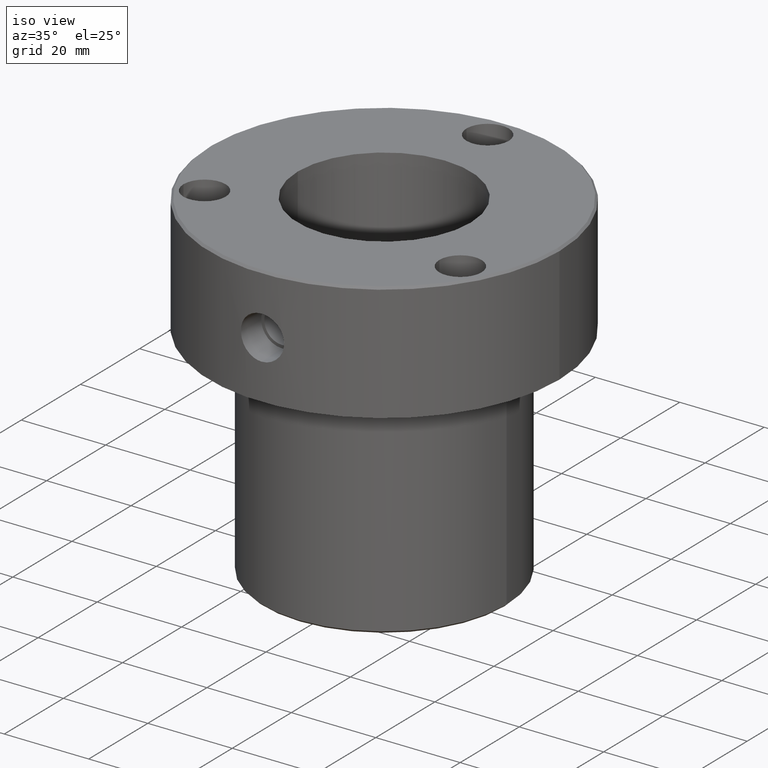
[diagram: clean part render]
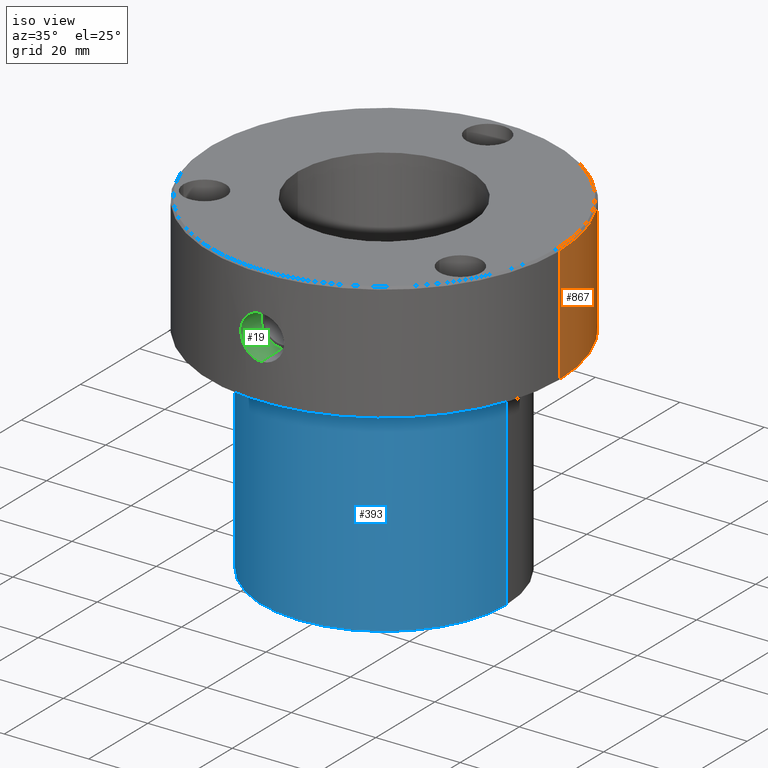
[diagram: same view with three faces highlighted in distinct colors, each labeled with its STEP entity id]
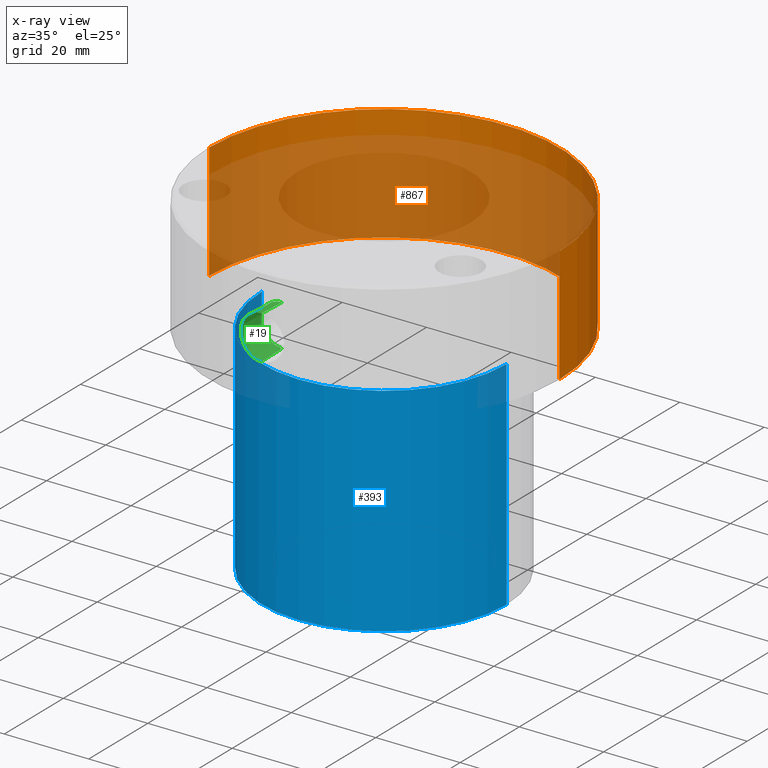
[diagram: x-ray of the same camera — body ghosted, the three highlighted faces saturated]
A machine part, iso view with three faces highlighted in distinct colors.
The next image is the same camera in x-ray (body ghosted, the three faces saturated) — at least one of them is partly hidden behind the body in this view.
Their STEP definitions:

[orange] entity #867 — the highlighted cylindrical surface (partial cylindrical patch) has radius 41.5 mm, axis along (-0, -0, 1).
#26 = DIRECTION ( 'NONE',  ( 1.000000000000000000, 0.000000000000000000, 0.000000000000000000 ) ) ;
#39 = DIRECTION ( 'NONE',  ( 0.000000000000000000, 0.000000000000000000, -1.000000000000000000 ) ) ;
#42 = LINE ( 'NONE', #743, #849 ) ;
#82 = CARTESIAN_POINT ( 'NONE',  ( 41.50000000000000000, 0.000000000000000000, -27.99999999999999645 ) ) ;
#102 = VECTOR ( 'NONE', #658, 1000.000000000000000 ) ;
#164 = EDGE_LOOP ( 'NONE', ( #798, #1090, #1058, #834 ) ) ;
#169 = CARTESIAN_POINT ( 'NONE',  ( -41.50000000000000000, 5.082284216461515748E-15, -0.5000000000000143219 ) ) ;
#325 = CYLINDRICAL_SURFACE ( 'NONE', #827, 41.50000000000000000 ) ;
#343 = DIRECTION ( 'NONE',  ( -0.000000000000000000, -0.000000000000000000, 1.000000000000000000 ) ) ;
#350 = EDGE_CURVE ( 'NONE', #420, #877, #993, .T. ) ;
#417 = CARTESIAN_POINT ( 'NONE',  ( 0.000000000000000000, 0.000000000000000000, 0.000000000000000000 ) ) ;
#420 = VERTEX_POINT ( 'NONE', #82 ) ;
#423 = DIRECTION ( 'NONE',  ( 1.000000000000000000, 0.000000000000000000, 0.000000000000000000 ) ) ;
#473 = AXIS2_PLACEMENT_3D ( 'NONE', #515, #343, #709 ) ;
#503 = EDGE_CURVE ( 'NONE', #420, #921, #805, .T. ) ;
#515 = CARTESIAN_POINT ( 'NONE',  ( 0.000000000000000000, 0.000000000000000000, -27.99999999999999645 ) ) ;
#518 = CARTESIAN_POINT ( 'NONE',  ( 0.000000000000000000, 0.000000000000000000, -0.5000000000000143219 ) ) ;
#647 = VERTEX_POINT ( 'NONE', #169 ) ;
#656 = CIRCLE ( 'NONE', #961, 41.50000000000000000 ) ;
#658 = DIRECTION ( 'NONE',  ( -0.000000000000000000, -0.000000000000000000, 1.000000000000000000 ) ) ;
#709 = DIRECTION ( 'NONE',  ( 1.000000000000000000, 0.000000000000000000, 0.000000000000000000 ) ) ;
#733 = CARTESIAN_POINT ( 'NONE',  ( 41.50000000000000000, 0.000000000000000000, 0.000000000000000000 ) ) ;
#743 = CARTESIAN_POINT ( 'NONE',  ( -41.50000000000000000, 5.082284216461515748E-15, 0.000000000000000000 ) ) ;
#779 = CARTESIAN_POINT ( 'NONE',  ( 41.50000000000000000, 0.000000000000000000, -0.5000000000000143219 ) ) ;
#784 = CARTESIAN_POINT ( 'NONE',  ( -41.50000000000000000, 5.082284216461515748E-15, -27.99999999999999645 ) ) ;
#798 = ORIENTED_EDGE ( 'NONE', *, *, #350, .T. ) ;
#805 = LINE ( 'NONE', #733, #102 ) ;
#827 = AXIS2_PLACEMENT_3D ( 'NONE', #417, #1179, #26 ) ;
#834 = ORIENTED_EDGE ( 'NONE', *, *, #503, .F. ) ;
#849 = VECTOR ( 'NONE', #1117, 1000.000000000000000 ) ;
#867 = ADVANCED_FACE ( 'NONE', ( #986 ), #325, .T. ) ;
#877 = VERTEX_POINT ( 'NONE', #784 ) ;
#899 = EDGE_CURVE ( 'NONE', #647, #921, #656, .T. ) ;
#921 = VERTEX_POINT ( 'NONE', #779 ) ;
#961 = AXIS2_PLACEMENT_3D ( 'NONE', #518, #39, #423 ) ;
#986 = FACE_OUTER_BOUND ( 'NONE', #164, .T. ) ;
#993 = CIRCLE ( 'NONE', #473, 41.50000000000000000 ) ;
#1020 = EDGE_CURVE ( 'NONE', #877, #647, #42, .T. ) ;
#1058 = ORIENTED_EDGE ( 'NONE', *, *, #899, .T. ) ;
#1090 = ORIENTED_EDGE ( 'NONE', *, *, #1020, .T. ) ;
#1117 = DIRECTION ( 'NONE',  ( -0.000000000000000000, -0.000000000000000000, 1.000000000000000000 ) ) ;
#1179 = DIRECTION ( 'NONE',  ( -0.000000000000000000, -0.000000000000000000, 1.000000000000000000 ) ) ;

[blue] entity #393 — the highlighted cylindrical surface (partial cylindrical patch) has radius 29 mm, axis along (-0, -0, 1).
#36 = DIRECTION ( 'NONE',  ( 1.000000000000000000, 0.000000000000000000, 0.000000000000000000 ) ) ;
#129 = VERTEX_POINT ( 'NONE', #736 ) ;
#143 = DIRECTION ( 'NONE',  ( -0.000000000000000000, -0.000000000000000000, 1.000000000000000000 ) ) ;
#166 = ORIENTED_EDGE ( 'NONE', *, *, #186, .T. ) ;
#167 = CARTESIAN_POINT ( 'NONE',  ( 29.00000000000000000, 0.000000000000000000, 0.000000000000000000 ) ) ;
#186 = EDGE_CURVE ( 'NONE', #662, #973, #567, .T. ) ;
#210 = LINE ( 'NONE', #596, #1156 ) ;
#320 = CIRCLE ( 'NONE', #1080, 29.00000000000000000 ) ;
#327 = CARTESIAN_POINT ( 'NONE',  ( -29.00000000000000000, 3.551475717527324030E-15, -79.50000000000002842 ) ) ;
#393 = ADVANCED_FACE ( 'NONE', ( #819 ), #1209, .T. ) ;
#431 = EDGE_CURVE ( 'NONE', #973, #1028, #1052, .T. ) ;
#437 = ORIENTED_EDGE ( 'NONE', *, *, #431, .T. ) ;
#551 = AXIS2_PLACEMENT_3D ( 'NONE', #597, #614, #903 ) ;
#567 = CIRCLE ( 'NONE', #551, 29.00000000000000000 ) ;
#596 = CARTESIAN_POINT ( 'NONE',  ( -29.00000000000000000, 3.551475717527324030E-15, 0.000000000000000000 ) ) ;
#597 = CARTESIAN_POINT ( 'NONE',  ( 0.000000000000000000, 0.000000000000000000, -79.50000000000002842 ) ) ;
#614 = DIRECTION ( 'NONE',  ( -0.000000000000000000, -0.000000000000000000, 1.000000000000000000 ) ) ;
#653 = DIRECTION ( 'NONE',  ( -0.000000000000000000, -0.000000000000000000, 1.000000000000000000 ) ) ;
#657 = ORIENTED_EDGE ( 'NONE', *, *, #1151, .F. ) ;
#662 = VERTEX_POINT ( 'NONE', #327 ) ;
#665 = CARTESIAN_POINT ( 'NONE',  ( 0.000000000000000000, 0.000000000000000000, -27.99999999999999645 ) ) ;
#703 = CARTESIAN_POINT ( 'NONE',  ( 29.00000000000000000, 0.000000000000000000, -79.50000000000002842 ) ) ;
#736 = CARTESIAN_POINT ( 'NONE',  ( -29.00000000000000000, 3.551475717527324030E-15, -27.99999999999999645 ) ) ;
#750 = VECTOR ( 'NONE', #653, 1000.000000000000000 ) ;
#755 = DIRECTION ( 'NONE',  ( 1.000000000000000000, 0.000000000000000000, 0.000000000000000000 ) ) ;
#794 = DIRECTION ( 'NONE',  ( -0.000000000000000000, -0.000000000000000000, 1.000000000000000000 ) ) ;
#819 = FACE_OUTER_BOUND ( 'NONE', #884, .T. ) ;
#884 = EDGE_LOOP ( 'NONE', ( #1036, #166, #437, #657 ) ) ;
#894 = CARTESIAN_POINT ( 'NONE',  ( 0.000000000000000000, 0.000000000000000000, 0.000000000000000000 ) ) ;
#903 = DIRECTION ( 'NONE',  ( -1.000000000000000000, 0.000000000000000000, 0.000000000000000000 ) ) ;
#973 = VERTEX_POINT ( 'NONE', #703 ) ;
#1016 = CARTESIAN_POINT ( 'NONE',  ( 29.00000000000000000, 0.000000000000000000, -27.99999999999999645 ) ) ;
#1028 = VERTEX_POINT ( 'NONE', #1016 ) ;
#1036 = ORIENTED_EDGE ( 'NONE', *, *, #1207, .F. ) ;
#1052 = LINE ( 'NONE', #167, #750 ) ;
#1080 = AXIS2_PLACEMENT_3D ( 'NONE', #665, #1134, #755 ) ;
#1134 = DIRECTION ( 'NONE',  ( -0.000000000000000000, -0.000000000000000000, 1.000000000000000000 ) ) ;
#1135 = AXIS2_PLACEMENT_3D ( 'NONE', #894, #143, #36 ) ;
#1151 = EDGE_CURVE ( 'NONE', #129, #1028, #320, .T. ) ;
#1156 = VECTOR ( 'NONE', #794, 1000.000000000000000 ) ;
#1207 = EDGE_CURVE ( 'NONE', #662, #129, #210, .T. ) ;
#1209 = CYLINDRICAL_SURFACE ( 'NONE', #1135, 29.00000000000000000 ) ;

[green] entity #19 — the highlighted conical surface has half-angle 1.715 deg.
#15 = CARTESIAN_POINT ( 'NONE',  ( -4.617200543455427741, -41.24255031704900887, -16.52343980841959947 ) ) ;
#19 = ADVANCED_FACE ( 'NONE', ( #848 ), #713, .F. ) ;
#108 = VERTEX_POINT ( 'NONE', #1012 ) ;
#175 = ORIENTED_EDGE ( 'NONE', *, *, #786, .F. ) ;
#213 = VECTOR ( 'NONE', #1060, 1000.000000000000227 ) ;
#227 = CARTESIAN_POINT ( 'NONE',  ( -0.3350682603603476473, -41.50000000000000000, -19.39337300000000397 ) ) ;
#286 = CARTESIAN_POINT ( 'NONE',  ( -4.082477898350872714, -41.29913159889288465, -11.11345080764193227 ) ) ;
#293 = CARTESIAN_POINT ( 'NONE',  ( 6.298815287416284232E-16, -41.50000000000000000, -9.106627000000006689 ) ) ;
#295 = LINE ( 'NONE', #496, #213 ) ;
#297 = VERTEX_POINT ( 'NONE', #424 ) ;
#310 = CARTESIAN_POINT ( 'NONE',  ( -5.092463226589477365, -41.18637027485478797, -13.57687092004547402 ) ) ;
#321 = CARTESIAN_POINT ( 'NONE',  ( -4.871555449415037486, -41.21328197726079168, -12.59267309540596180 ) ) ;
#328 = CARTESIAN_POINT ( 'NONE',  ( -5.125564061013234252, -41.18226403669493152, -13.91293155588416219 ) ) ;
#381 = CARTESIAN_POINT ( 'NONE',  ( 0.000000000000000000, -34.58000000000000540, -19.18617893293992793 ) ) ;
#397 = EDGE_LOOP ( 'NONE', ( #175, #1252, #832, #499 ) ) ;
#403 = CARTESIAN_POINT ( 'NONE',  ( -2.275777960866582905, -41.43871743576949740, -18.87267168938217665 ) ) ;
#408 = CARTESIAN_POINT ( 'NONE',  ( -4.968702008353958810, -41.20153389003530719, -12.91289993887919962 ) ) ;
#416 = CARTESIAN_POINT ( 'NONE',  ( -4.083468521059986145, -41.29903949033938915, -17.38554455033941792 ) ) ;
#424 = CARTESIAN_POINT ( 'NONE',  ( 2.108101396014697804E-21, -41.50000000000000000, -19.39337300000000397 ) ) ;
#496 = CARTESIAN_POINT ( 'NONE',  ( 0.000000000000000000, -41.50000000000000000, -19.39337300000000397 ) ) ;
#499 = ORIENTED_EDGE ( 'NONE', *, *, #811, .F. ) ;
#506 = CARTESIAN_POINT ( 'NONE',  ( -1.655288949730983727, -41.46813820925184757, -19.13030085942898495 ) ) ;
#558 = CARTESIAN_POINT ( 'NONE',  ( -3.394086074553285037, -41.36166610175697400, -10.37626308858978241 ) ) ;
#573 = CIRCLE ( 'NONE', #734, 4.936178932939922603 ) ;
#576 = CARTESIAN_POINT ( 'NONE',  ( -1.334466502813387301, -41.47984381437148471, -9.272069786490492405 ) ) ;
#584 = CARTESIAN_POINT ( 'NONE',  ( -4.615070424327308629, -41.24279074956536562, -11.97206579864487708 ) ) ;
#590 = CARTESIAN_POINT ( 'NONE',  ( -3.132951887491444598, -41.38251185378926778, -18.33837002926375703 ) ) ;
#600 = LINE ( 'NONE', #796, #1243 ) ;
#604 = CARTESIAN_POINT ( 'NONE',  ( 2.108101396014697804E-21, -41.50000000000000000, -19.39337300000000397 ) ) ;
#687 = DIRECTION ( 'NONE',  ( -0.000000000000000000, -1.000000000000000000, -0.000000000000000000 ) ) ;
#690 = CARTESIAN_POINT ( 'NONE',  ( -3.868908882022317641, -41.31995826587137088, -17.64772823622658393 ) ) ;
#706 = CARTESIAN_POINT ( 'NONE',  ( -0.6750926142630175875, -41.49582201622714450, -19.35984715612938700 ) ) ;
#713 = CONICAL_SURFACE ( 'NONE', #800, 5.143372999999999529, 0.02993239667170296756 ) ;
#734 = AXIS2_PLACEMENT_3D ( 'NONE', #748, #687, #860 ) ;
#748 = CARTESIAN_POINT ( 'NONE',  ( 0.000000000000000000, -34.58000000000000540, -14.25000000000000533 ) ) ;
#778 = CARTESIAN_POINT ( 'NONE',  ( -5.101709454286791789, -41.18527607460710982, -14.91722213312219658 ) ) ;
#786 = EDGE_CURVE ( 'NONE', #809, #1098, #573, .T. ) ;
#788 = CARTESIAN_POINT ( 'NONE',  ( -2.576868211289954136, -41.42085736775601390, -18.71113336113497283 ) ) ;
#796 = CARTESIAN_POINT ( 'NONE',  ( 6.298815281270918744E-16, -41.50000000000000000, -9.106627000000006689 ) ) ;
#800 = AXIS2_PLACEMENT_3D ( 'NONE', #1078, #1146, #862 ) ;
#809 = VERTEX_POINT ( 'NONE', #963 ) ;
#811 = EDGE_CURVE ( 'NONE', #1098, #297, #295, .T. ) ;
#832 = ORIENTED_EDGE ( 'NONE', *, *, #1165, .T. ) ;
#842 = CARTESIAN_POINT ( 'NONE',  ( -3.132718741693854003, -41.38252761798424473, -10.16147806440636714 ) ) ;
#848 = FACE_OUTER_BOUND ( 'NONE', #397, .T. ) ;
#860 = DIRECTION ( 'NONE',  ( 0.000000000000000000, 0.000000000000000000, -1.000000000000000000 ) ) ;
#862 = DIRECTION ( 'NONE',  ( 0.000000000000000000, 0.000000000000000000, -1.000000000000000000 ) ) ;
#888 = CARTESIAN_POINT ( 'NONE',  ( -4.872401314849809317, -41.21317996636337000, -15.90461268624623159 ) ) ;
#895 = CARTESIAN_POINT ( 'NONE',  ( -5.133770054922493387, -41.18123850768246541, -14.08069826201581343 ) ) ;
#963 = CARTESIAN_POINT ( 'NONE',  ( 6.172776487677910551E-16, -34.58000000000000540, -9.313821067060082726 ) ) ;
#969 = CARTESIAN_POINT ( 'NONE',  ( -3.391550504605600924, -41.36187607212048079, -18.12598980435603124 ) ) ;
#983 = CARTESIAN_POINT ( 'NONE',  ( -1.335186249268033754, -41.47982970697925964, -19.22781482291251010 ) ) ;
#995 = CARTESIAN_POINT ( 'NONE',  ( -4.457652184850283916, -41.26032858553116256, -16.82367133916453028 ) ) ;
#1012 = CARTESIAN_POINT ( 'NONE',  ( 6.298815287416284232E-16, -41.50000000000000000, -9.106627000000006689 ) ) ;
#1043 = B_SPLINE_CURVE_WITH_KNOTS ( 'NONE', 3,
 ( #293, #1148, #1142, #576, #1253, #1153, #1066, #842, #558, #1239, #286, #1051, #584, #321, #408, #1177, #310, #328, #895, #1086, #778, #1069, #888, #15, #995, #416, #690, #969, #590, #788, #403, #506, #983, #706, #227, #604 ),
 .UNSPECIFIED., .F., .F.,
 ( 4, 2, 2, 2, 2, 2, 2, 2, 2, 2, 2, 2, 2, 2, 2, 2, 2, 4 ),
 ( 0.02021362857546973521, 0.02121826824949517992, 0.02222290792352062810, 0.02322754759754607629, 0.02423218727157152447, 0.02523682694559696918, 0.02624146661962241736, 0.02724610629364786554, 0.02774842613066058616, 0.02825074596767330332, 0.02925538564169874109, 0.03026002531572417886, 0.03126466498974961317, 0.03226930466377504747, 0.03327394433780048177, 0.03427858401182591608, 0.03528322368585135732, 0.03628786335987679162 ),
 .UNSPECIFIED. ) ;
#1051 = CARTESIAN_POINT ( 'NONE',  ( -4.454109271255983771, -41.26070536494628271, -11.67053161493941893 ) ) ;
#1060 = DIRECTION ( 'NONE',  ( 0.000000000000000000, -0.9995520592605567911, -0.02992792722492342017 ) ) ;
#1066 = CARTESIAN_POINT ( 'NONE',  ( -2.577194124947769005, -41.42083520657356388, -9.789080731633461596 ) ) ;
#1069 = CARTESIAN_POINT ( 'NONE',  ( -4.969954534212426722, -41.20138294554474356, -15.58308990759573476 ) ) ;
#1078 = CARTESIAN_POINT ( 'NONE',  ( 0.000000000000000000, -41.50000000000000000, -14.25000000000000533 ) ) ;
#1086 = CARTESIAN_POINT ( 'NONE',  ( -5.133944861027605278, -41.18121671560616903, -14.58322601611474667 ) ) ;
#1098 = VERTEX_POINT ( 'NONE', #381 ) ;
#1142 = CARTESIAN_POINT ( 'NONE',  ( -0.6766514500765288265, -41.49578757569125997, -9.140436106059212307 ) ) ;
#1146 = DIRECTION ( 'NONE',  ( -0.000000000000000000, -1.000000000000000000, -0.000000000000000000 ) ) ;
#1148 = CARTESIAN_POINT ( 'NONE',  ( -0.3358848179217935881, -41.50000000000000000, -9.106627000000003136 ) ) ;
#1153 = CARTESIAN_POINT ( 'NONE',  ( -2.278754979423208038, -41.43856631753568820, -9.628666380064457186 ) ) ;
#1165 = EDGE_CURVE ( 'NONE', #108, #297, #1043, .T. ) ;
#1177 = CARTESIAN_POINT ( 'NONE',  ( -5.067404577820334488, -41.18947085699902289, -13.40828157554759414 ) ) ;
#1184 = DIRECTION ( 'NONE',  ( 3.665114028111739322E-18, -0.9995520592605567911, 0.02992792722492342017 ) ) ;
#1239 = CARTESIAN_POINT ( 'NONE',  ( -3.870759735923740230, -41.31978293821809700, -10.85441625085839945 ) ) ;
#1243 = VECTOR ( 'NONE', #1184, 1000.000000000000227 ) ;
#1247 = EDGE_CURVE ( 'NONE', #809, #108, #600, .T. ) ;
#1252 = ORIENTED_EDGE ( 'NONE', *, *, #1247, .T. ) ;
#1253 = CARTESIAN_POINT ( 'NONE',  ( -1.654948281226035656, -41.46816428171756996, -9.369456122873327075 ) ) ;